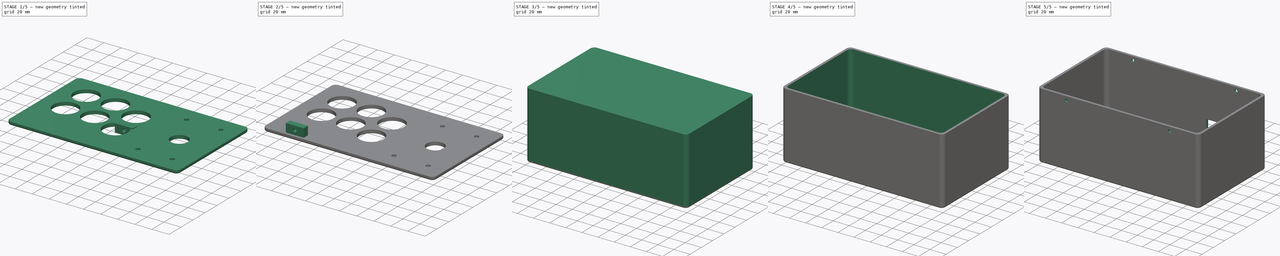
[diagram: build sequence overview — one tinted view per stage of 5, left to right]
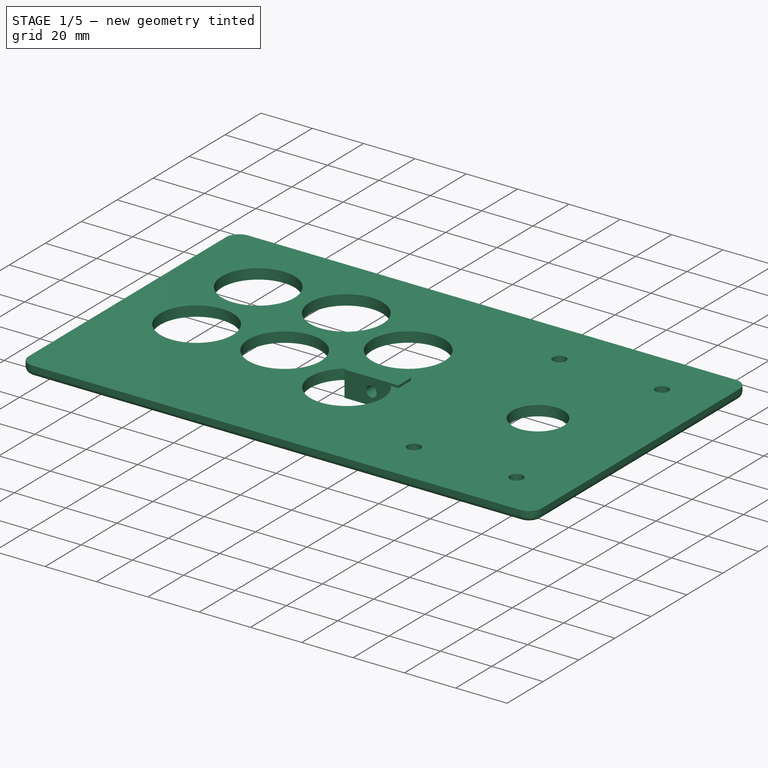
[diagram: stage 1 of 5 — iso view after this stage's code; geometry added in this stage tinted green]
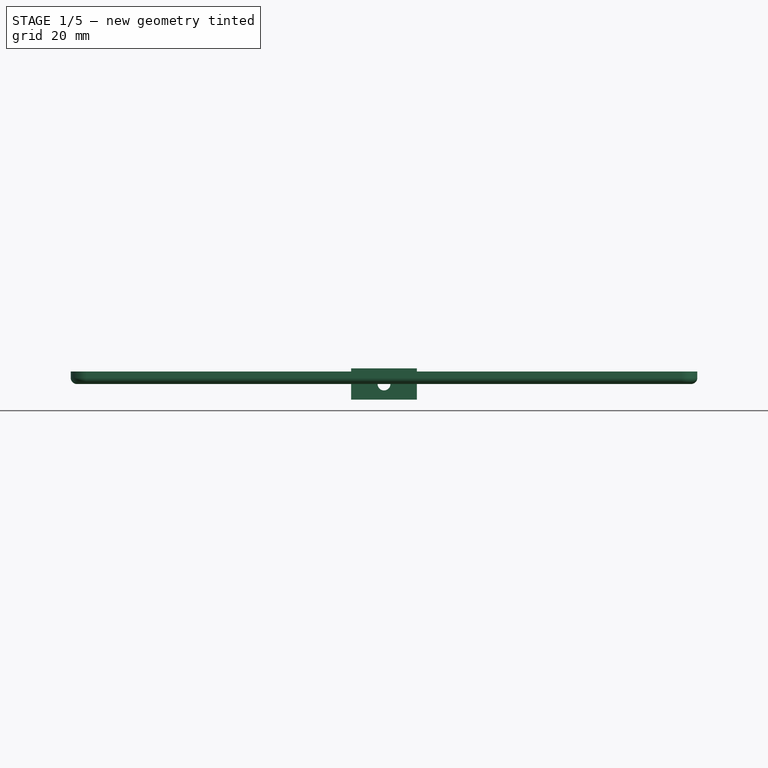
[diagram: stage 1 of 5 — front view after this stage's code; geometry added in this stage tinted green]
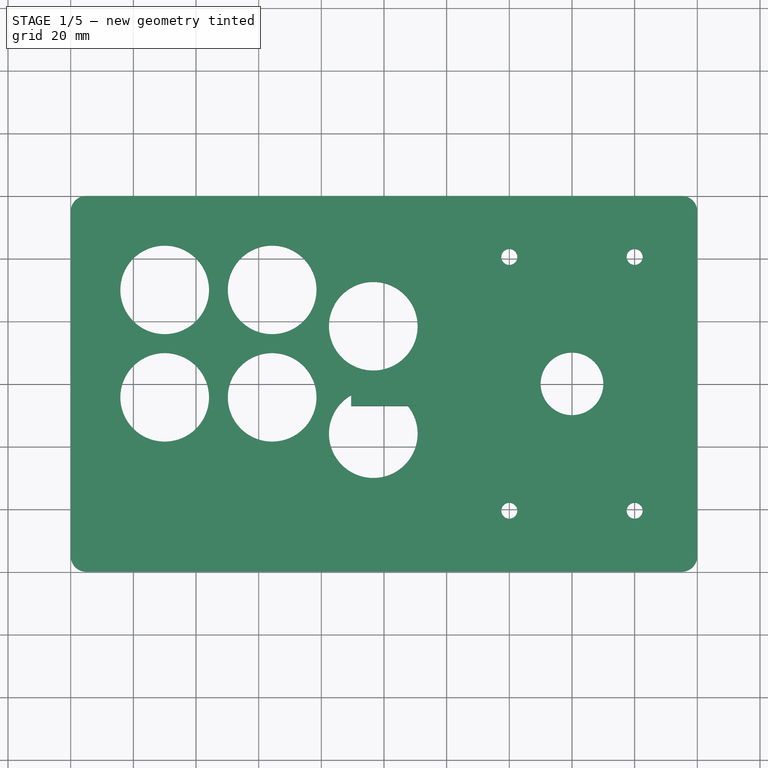
[diagram: stage 1 of 5 — top view after this stage's code; geometry added in this stage tinted green]
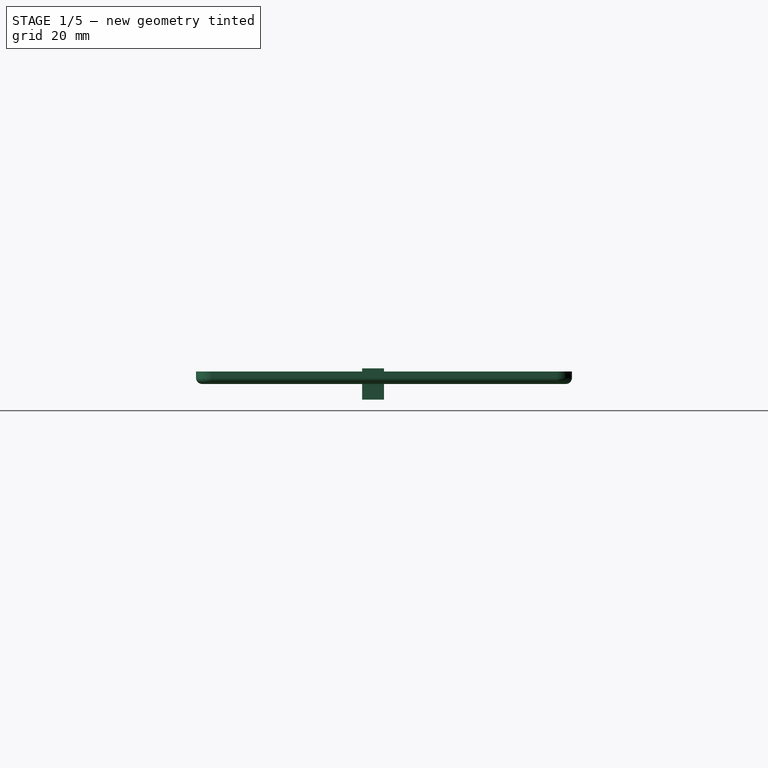
[diagram: stage 1 of 5 — right view after this stage's code; geometry added in this stage tinted green]
FCSTD DOCUMENT  (FreeCAD 0.20R29410 (Git))
Label: arcade-controller
License: All rights reserved
LicenseURL: http://en.wikipedia.org/wiki/All_rights_reserved
objects: Sketcher::SketchObject×9, PartDesign::Body×6, PartDesign::Pocket×5, PartDesign::Pad×4, PartDesign::FeatureBase×3, PartDesign::Fillet×3, Spreadsheet::Sheet×1, Part::MultiFuse×1
note: 43 computed .brp shape members not serialized (recipe doc carries the construction recipe); baked Part::Feature solids carry a one-line shape summary decoded from their .brp

FEATURE [Sketcher::SketchObject] Sketch
  FullyConstrained = true
  MapMode = 5
  Support = -> [XY_Plane]
  expr: Constraints[20] = <<Globals>>.button_distance
  expr: Constraints[24] = <<Globals>>.button_distance
  expr: Constraints[33] = <<Globals>>.button_distance
  expr: Constraints[39] = <<Globals>>.button_distance
  expr: Constraints[46] = <<Globals>>.joy_holes_x_distance
  expr: Constraints[48] = <<Globals>>.joy_screw_d + <<Globals>>.delta
  expr: Constraints[4] = <<Globals>>.button_diameter
  expr: Constraints[58] = <<Globals>>.joy_holes_y_distance
  expr: Constraints[67] = <<Globals>>.joy_diameter
  expr: Constraints[77] = <<Globals>>.cover_fillet_radious
  expr: Constraints[78] = <<Globals>>.cover_fillet_radious
  expr: Constraints[79] = <<Globals>>.width
  expr: Constraints[80] = <<Globals>>.depth
  expr: Constraints[81] = <<Globals>>.button_distance_to_edge
  sketch-geometry (30):
    g0: LineSegment StartX=-95 StartY=60 StartZ=0 EndX=95 EndY=60 EndZ=0
    g1: LineSegment StartX=100 StartY=55 StartZ=0 EndX=100 EndY=-55 EndZ=0
    g2: LineSegment StartX=95 StartY=-60 StartZ=0 EndX=-95 EndY=-60 EndZ=0
    g3: LineSegment StartX=-100 StartY=-55 StartZ=0 EndX=-100 EndY=55 EndZ=0
    g4: Circle CenterX=-70 CenterY=30 CenterZ=0 NormalX=0 NormalY=0 NormalZ=1 AngleXU=0 Radius=14.15
    g5: LineSegment StartX=-100 StartY=30 StartZ=0 EndX=100 EndY=30 EndZ=0
    g6: LineSegment StartX=-100 StartY=-4.3 StartZ=0 EndX=100 EndY=-4.3 EndZ=0
    g7: LineSegment StartX=-70 StartY=60 StartZ=0 EndX=-70 EndY=-60 EndZ=0
    g8: LineSegment StartX=-35.7 StartY=60 StartZ=0 EndX=-35.7 EndY=-60 EndZ=0
    g9: Circle CenterX=-70 CenterY=-4.3 CenterZ=0 NormalX=0 NormalY=0 NormalZ=1 AngleXU=0 Radius=14.15
    g10: Circle CenterX=-35.7 CenterY=30 CenterZ=0 NormalX=0 NormalY=0 NormalZ=1 AngleXU=0 Radius=14.15
    g11: Circle CenterX=-35.7 CenterY=-4.3 CenterZ=0 NormalX=0 NormalY=0 NormalZ=1 AngleXU=0 Radius=14.15
    g12: LineSegment StartX=-100 StartY=53.1241 StartZ=0 EndX=100 EndY=-18.8015 EndZ=0
    g13: Circle CenterX=-3.42374 CenterY=18.3926 CenterZ=0 NormalX=0 NormalY=0 NormalZ=1 AngleXU=0 Radius=14.15
    g14: LineSegment StartX=-100 StartY=18.8241 StartZ=0 EndX=119.182 EndY=-60 EndZ=0
    g15: Circle CenterX=-3.42374 CenterY=-15.9074 CenterZ=0 NormalX=0 NormalY=0 NormalZ=1 AngleXU=0 Radius=14.15
    g16: LineSegment StartX=80 StartY=60 StartZ=0 EndX=80 EndY=-60 EndZ=0
    g17: LineSegment StartX=40 StartY=60 StartZ=0 EndX=40 EndY=-60 EndZ=0
    g18: Circle CenterX=40 CenterY=40.5 CenterZ=0 NormalX=0 NormalY=0 NormalZ=1 AngleXU=0 Radius=2.55
    g19: Circle CenterX=40 CenterY=-40.5 CenterZ=0 NormalX=0 NormalY=0 NormalZ=1 AngleXU=0 Radius=2.55
    g20: Circle CenterX=80 CenterY=40.5 CenterZ=0 NormalX=0 NormalY=0 NormalZ=1 AngleXU=0 Radius=2.55
    g21: Circle CenterX=80 CenterY=-40.5 CenterZ=0 NormalX=0 NormalY=0 NormalZ=1 AngleXU=0 Radius=2.55
    g22: LineSegment StartX=-100 StartY=40.5 StartZ=0 EndX=100 EndY=40.5 EndZ=0
    g23: LineSegment StartX=-100 StartY=-40.5 StartZ=0 EndX=100 EndY=-40.5 EndZ=0
    g24: LineSegment StartX=60 StartY=60 StartZ=0 EndX=60 EndY=-60 EndZ=0
    g25: Circle CenterX=60 CenterY=4.5e-15 CenterZ=0 NormalX=0 NormalY=0 NormalZ=1 AngleXU=0 Radius=10
    g26: ArcOfCircle CenterX=-95 CenterY=55 CenterZ=0 NormalX=0 NormalY=0 NormalZ=1 AngleXU=0 Radius=5 StartAngle=1.5708 EndAngle=3.14159
    g27: ArcOfCircle CenterX=-95 CenterY=-55 CenterZ=0 NormalX=0 NormalY=0 NormalZ=1 AngleXU=0 Radius=5 StartAngle=3.14159 EndAngle=4.71239
    g28: ArcOfCircle CenterX=95 CenterY=-55 CenterZ=0 NormalX=0 NormalY=0 NormalZ=1 AngleXU=0 Radius=5 StartAngle=4.71239 EndAngle=6.28319
    g29: ArcOfCircle CenterX=95 CenterY=55 CenterZ=0 NormalX=0 NormalY=0 NormalZ=1 AngleXU=0 Radius=5 StartAngle=0 EndAngle=1.5708
  constraints (92):
    c: Horizontal(g0)
    c: Horizontal(g2)
    c: Vertical(g1)
    c: Vertical(g3)
    c: Diameter(g4) = 28.3
    c: PointOnObject(g5,g3)
    c: PointOnObject(g5,g1)
    c: Horizontal(g5)
    c: PointOnObject(g6,g3)
    c: PointOnObject(g6,g1)
    c: Horizontal(g6)
    c: DistanceY(g5) = 30
    c: PointOnObject(g4,g5)
    c: PointOnObject(g7,g0)
    c: PointOnObject(g7,g2)
    c: Vertical(g7)
    c: PointOnObject(g8,g0)
    c: PointOnObject(g8,g2)
    c: Vertical(g8)
    c: PointOnObject(g4,g7)
    c: DistanceY(g6,g5) = 34.3
    c: Equal(g4,g9) = 28.2
    c: PointOnObject(g9,g6)
    c: PointOnObject(g9,g7)
    c: DistanceX(g7,g8) = 34.3
    c: Equal(g4,g10) = 28.2
    c: PointOnObject(g10,g8)
    c: PointOnObject(g10,g5)
    c: PointOnObject(g11,g8)
    c: PointOnObject(g11,g6)
    c: PointOnObject(g12,g1)
    c: PointOnObject(g10,g12)
    c: PointOnObject(g13,g12)
    c: Distance(g13,g10) = 34.3
    c: PointOnObject(g14,g3)
    c: Parallel(g14,g12)
    c: PointOnObject(g11,g14)
    c: PointOnObject(g14,g2)
    c: PointOnObject(g15,g14)
    c: Distance(g15,g11) = 34.3
    c: PointOnObject(g16,g0)
    c: PointOnObject(g16,g2)
    c: Vertical(g16)
    c: PointOnObject(g17,g0)
    c: PointOnObject(g17,g2)
    c: Vertical(g17)
    c: DistanceX(g17,g16) = 40
    c: PointOnObject(g18,g17)
    c: Diameter(g18) = 5.1
    c: Equal(g18,g19) = 5.1
    c: Equal(g18,g20) = 5.1
    c: PointOnObject(g20,g16)
    c: PointOnObject(g21,g16)
    c: PointOnObject(g22,g3)
    c: PointOnObject(g22,g1)
    c: Horizontal(g22)
    c: PointOnObject(g23,g3)
    c: Horizontal(g23)
    c: DistanceY(g23,g22) = 81
    c: Symmetric(g22,g23,g-1)  'joy_y'
    c: PointOnObject(g18,g22)
    c: Tangent(g20,g22) = -1.5708
    c: Tangent(g19,g23) = -1.5708
    c: PointOnObject(g21,g23)
    c: PointOnObject(g24,g2)
    c: Vertical(g24)
    c: Symmetric(g16,g17,g24)
    c: Diameter(g25) = 20
    c: PointOnObject(g12,g3)
    c: Tangent(g0,g26) = 1.5708
    c: Tangent(g3,g26) = 1.5708
    c: Tangent(g3,g27) = 1.5708
    c: Tangent(g2,g27) = 1.5708
    c: Tangent(g2,g28) = 1.5708
    c: Tangent(g1,g28) = 1.5708
    c: Tangent(g0,g29) = 1.5708
    c: Tangent(g1,g29) = 1.5708
    c: Radius(g26) = 5
    c: Radius(g29) = 5
    c: DistanceX(g3,g1) = 200
    c: DistanceY(g2,g0) = 120
    c: DistanceX(g3,g7) = 30
    c: Symmetric(g0,g2,g-1)
    c: Symmetric(g3,g1,g-2)
    c: DistanceX(g16,g1) = 20
    c: Angle(g12,g0) = 0.345226
    c: Equal(g13,g10)
    c: Equal(g15,g10)
    c: Equal(g11,g9)
    c: Equal(g21,g18)
    c: PointOnObject(g19,g17)
    c: Symmetric(g20,g19,g25)
FEATURE [Spreadsheet::Sheet] Spreadsheet  label="Globals"
  cells = A1=width; B1(width)==200mm; A2=depth; B2(depth)==120mm; A3=button_diameter; B3(button_diameter)==28.3mm; A4=button_distance; B4(button_distance)==B3 + 6mm; C4=Distance between centers of two buttons; A5=joy screw d; B5(joy_screw_d)==5mm; A6=joy_holes_y_distance; B6(joy_holes_y_distance)==89mm - B7; A7=joy hole depth; B7==8mm; A8=joy holes x distance; B8(joy_holes_x_distance)==45mm - B5; A9=delta; B9(delta)==0.1mm; A10=joy_diameter; B10(joy_diameter)==20mm; A11=plate_thickness; B11(plate_thickness)==4mm; A12=cover_fillet_radious; B12(cover_fillet_radious)==5mm; A13=button_distance_to_edge; B13(button_distance_to_edge)==30mm; A14=hinge_width; B14(hinge_width)==21mm; A15=hinge_depth; B15(hinge_depth)==7mm; A16=hinge_height; B16(hinge_height)==10mm; A17=hinge_y_offset; B17(hinge_y_offset)==depth / 2 - (10mm - B15 / 2); A18=hine_x_offset; B18(hine_x_offset)==B1 / 2 - (46mm - B14 / 2); A19=hinge_screw_d; B19(hinge_screw_d)==4mm; A20=hinge_bolt_d; B20(hinge_bolt_d)==8mm; A21=box_height; B21(box_height)==80mm; A22=case_thickness; B22(case_thickness)==3mm; A23=controller_width; B23(controller_width)==36mm; A24=controller_depth; B24(controller_depth)==86mm; A25=controller_depth_overflow; B25(controller_depth_overflow)==8mm; A26=controller_screw_d; B26(controller_screw_d)==3mm; A27=controller_screw_from_edge; B27(controller_screw_from_edge)==3mm; A28=controller_left_from_inner; B28(controller_left_from_inner)==5mm; A29=controller_usb_left_from_outer; B29(controller_usb_left_from_outer)==B22 + (B23 - B31) / 2 + B28 - B27; A30=controller_usb_width; B30(controller_usb_width)==12mm; A31=controller_usb_hole_width; B31(controller_usb_hole_width)==20mm; A32=joy_inbox_height; B32(joy_inbox_height)==35mm
FEATURE [PartDesign::Pad] Pad  label="raw cover"
  Direction = (0,0,1)
  Length = 4
  Length2 = 10
  Profile = -> Sketch
  ReferenceAxis = -> Sketch [N_Axis]
  Type = 0
  expr: Length = <<Globals>>.plate_thickness
FEATURE [Sketcher::SketchObject] Sketch001
  FullyConstrained = true
  MapMode = 5
  Placement = pos=(0,0,0) rot=(1,0,0;1.5708rad)
  Support = -> [XZ_Plane001]
  expr: Constraints[14] = <<Globals>>.hinge_width
  expr: Constraints[15] = <<Globals>>.hinge_height
  expr: Constraints[16] = <<Globals>>.hinge_screw_d + <<Globals>>.delta
  sketch-geometry (7):
    g0: LineSegment StartX=-10.5 StartY=5 StartZ=0 EndX=10.5 EndY=5 EndZ=0
    g1: LineSegment StartX=10.5 StartY=5 StartZ=0 EndX=10.5 EndY=-5 EndZ=0
    g2: LineSegment StartX=10.5 StartY=-5 StartZ=0 EndX=-10.5 EndY=-5 EndZ=0
    g3: LineSegment StartX=-10.5 StartY=-5 StartZ=0 EndX=-10.5 EndY=5 EndZ=0
    g4: LineSegment StartX=-10.5 StartY=5 StartZ=0 EndX=0 EndY=0 EndZ=0
    g5: LineSegment StartX=0 StartY=0 StartZ=0 EndX=10.5 EndY=-5 EndZ=0
    g6: Circle CenterX=0 CenterY=0 CenterZ=0 NormalX=0 NormalY=0 NormalZ=1 AngleXU=0 Radius=2.05
  constraints (18):
    c: Coincident(g0,g1)
    c: Coincident(g1,g2)
    c: Coincident(g2,g3)
    c: Coincident(g3,g0)
    c: Horizontal(g0)
    c: Horizontal(g2)
    c: Vertical(g1)
    c: Vertical(g3)
    c: Coincident(g4,g0)
    c: Coincident(g4,g-1)
    c: Coincident(g5,g4)
    c: Coincident(g5,g1)
    c: Parallel(g5,g4)
    c: Equal(g5,g4)
    c: DistanceX(g0,g0) = 21
    c: DistanceY(g1,g0) = 10
    c: Diameter(g6) = 4.1
    c: Coincident(g6,g4)
FEATURE [PartDesign::Pad] Pad001
  Direction = (0,-1,-2e-16)
  Length = 7
  Length2 = 10
  Placement = pos=(0,0,0) rot=(1,0,0;1.5708rad)
  Profile = -> Sketch001
  ReferenceAxis = -> Sketch001 [N_Axis]
  Type = 0
  expr: Length = <<Globals>>.hinge_depth
FEATURE [PartDesign::Body] Body004  label="Hinge BottomRight"
  BaseFeature = -> Body003
  Group = -> [Clone002]
  Origin = -> Origin004
  Placement = pos=(129,0,0) rot=(0,0,1;0rad)
  Tip = -> Clone002
FEATURE [PartDesign::Fillet] Fillet
  Base = -> Pad [Edge15]
  BaseFeature = -> Pad
  Radius = 2
  SupportTransform = false
  UseAllEdges = false
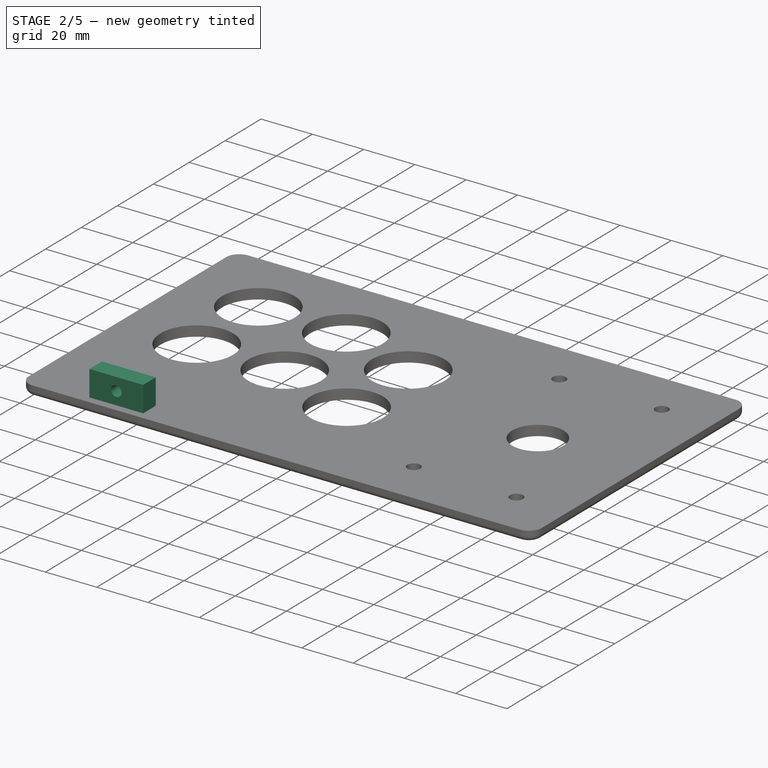
[diagram: stage 2 of 5 — iso view after this stage's code; geometry added in this stage tinted green]
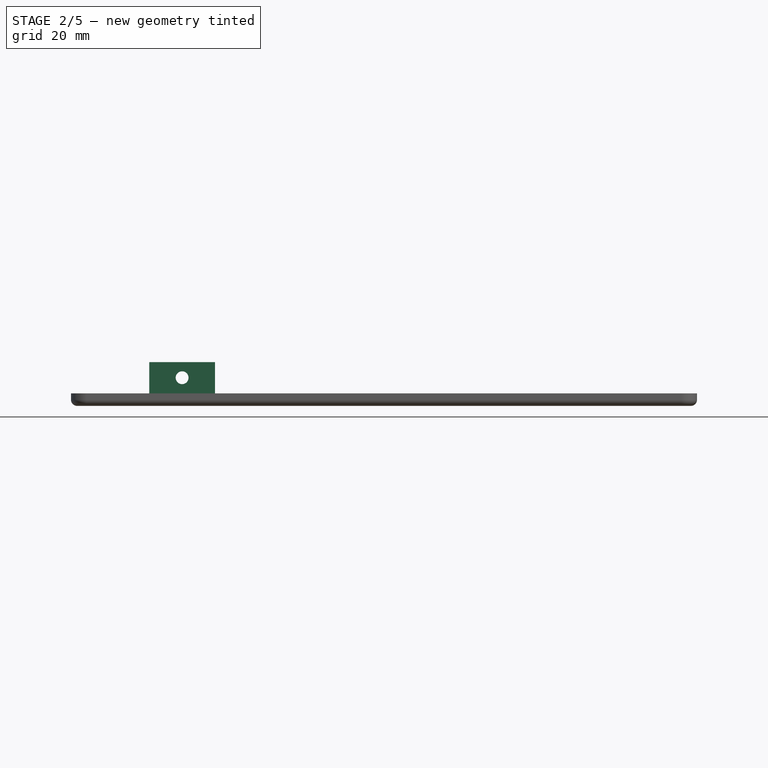
[diagram: stage 2 of 5 — front view after this stage's code; geometry added in this stage tinted green]
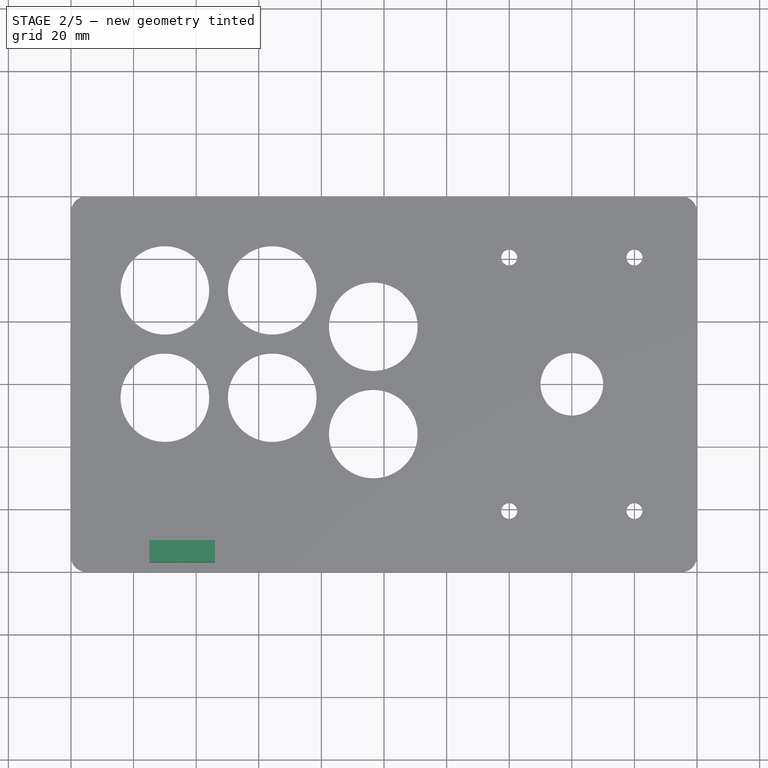
[diagram: stage 2 of 5 — top view after this stage's code; geometry added in this stage tinted green]
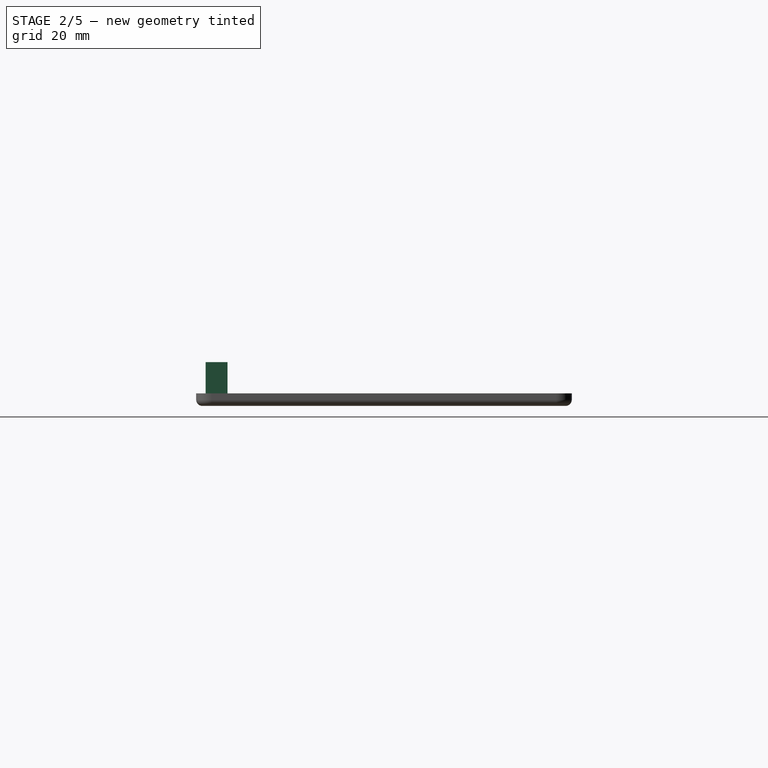
[diagram: stage 2 of 5 — right view after this stage's code; geometry added in this stage tinted green]
FEATURE [Sketcher::SketchObject] Sketch002
  FullyConstrained = false
  MapMode = 5
  Placement = pos=(0,-7,-1.6e-15) rot=(1,0,0;1.5708rad)
  Support = -> [Pad001]
  expr: Constraints[18] = <<Globals>>.hinge_bolt_d + <<Globals>>.delta
  sketch-geometry (7):
    g0: LineSegment StartX=2.23902 StartY=-3.3748 StartZ=0 EndX=4.04217 EndY=0.251643 EndZ=0
    g1: LineSegment StartX=4.04217 StartY=0.251643 StartZ=0 EndX=1.80316 EndY=3.62645 EndZ=0
    g2: LineSegment StartX=1.80316 StartY=3.62645 StartZ=0 EndX=-2.23902 EndY=3.3748 EndZ=0
    g3: LineSegment StartX=-2.23902 StartY=3.3748 StartZ=0 EndX=-4.04217 EndY=-0.251643 EndZ=0
    g4: LineSegment StartX=-4.04217 StartY=-0.251643 StartZ=0 EndX=-1.80316 EndY=-3.62645 EndZ=0
    g5: LineSegment StartX=-1.80316 StartY=-3.62645 StartZ=0 EndX=2.23902 EndY=-3.3748 EndZ=0
    g6: Circle CenterX=0 CenterY=0 CenterZ=0 NormalX=0 NormalY=0 NormalZ=1 AngleXU=0 Radius=4.05
  constraints (15):
    c: Coincident(g0,g1)
    c: Coincident(g1,g2)
    c: Coincident(g2,g3)
    c: Coincident(g3,g4)
    c: Coincident(g4,g5)
    c: Coincident(g5,g0)
    c: Equal(g0, g1-g5) x5
    c: PointOnObject(g0,g6)
    c: PointOnObject(g1,g6)
    c: PointOnObject(g2,g6)
    c: PointOnObject(g3,g6)
    c: PointOnObject(g4,g6)
    c: PointOnObject(g5,g6)
    c: Coincident(g6,g-1)
    c: Diameter(g6) = 8.1
FEATURE [PartDesign::Pocket] Pocket
  BaseFeature = -> Pad001
  Direction = (0,1,2e-16)
  Length = 2.1
  Length2 = 5
  Placement = pos=(0,0,0) rot=(1,0,0;1.5708rad)
  Profile = -> Sketch002
  ReferenceAxis = -> Sketch002 [N_Axis]
  Type = 0
  expr: Length = 2mm + <<Globals>>.delta
FEATURE [PartDesign::Body] Body002  label="Hinge TopRight"
  BaseFeature = -> Body001
  Group = -> [Clone]
  Origin = -> Origin002
  Placement = pos=(129,0,0) rot=(0,0,1;0rad)
  Tip = -> Clone
FEATURE [PartDesign::FeatureBase] Clone001
  BaseFeature = -> Body001
  Placement = pos=(-64.5,57,9) rot=(0,0,1;3.14159rad)
FEATURE [PartDesign::Body] Body003  label="Hinge BottomLeft"
  BaseFeature = -> Body001
  Group = -> [Clone001]
  Origin = -> Origin003
  Placement = pos=(0,-114,0) rot=(0,0,1;0rad)
  Tip = -> Clone001
FEATURE [PartDesign::FeatureBase] Clone002
  BaseFeature = -> Body003
  Placement = pos=(0,-114,0) rot=(0,0,1;0rad)
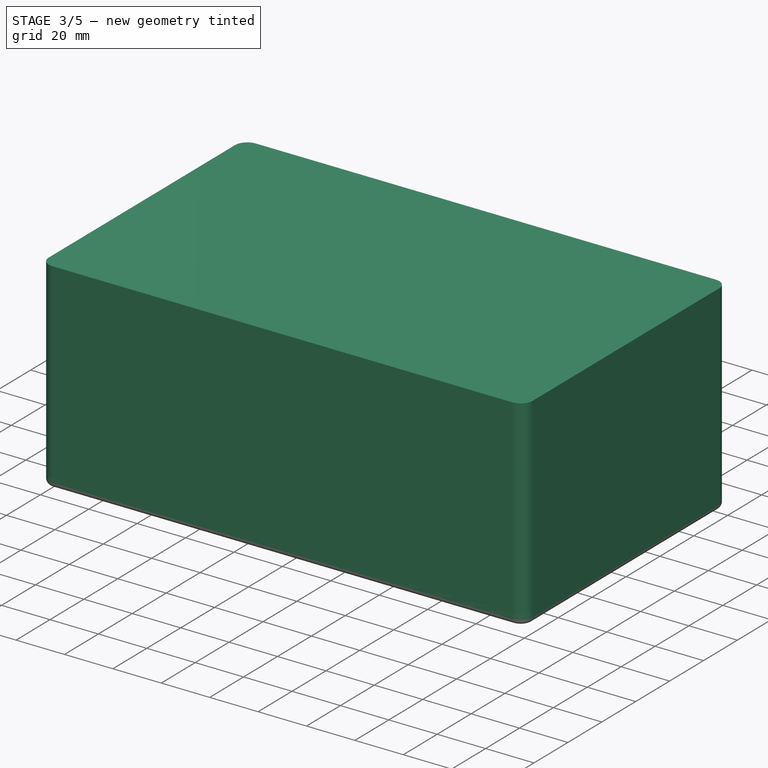
[diagram: stage 3 of 5 — iso view after this stage's code; geometry added in this stage tinted green]
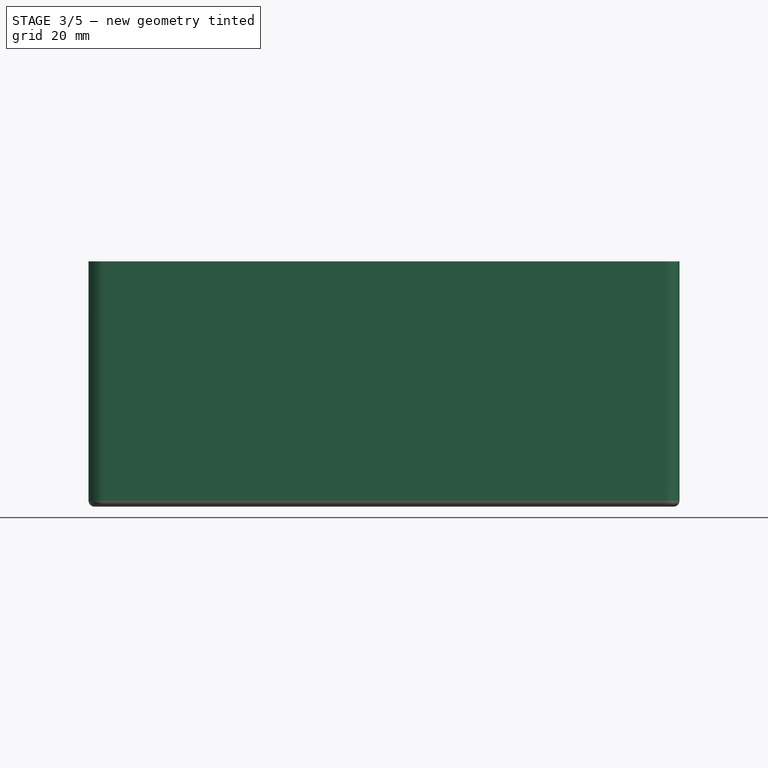
[diagram: stage 3 of 5 — front view after this stage's code; geometry added in this stage tinted green]
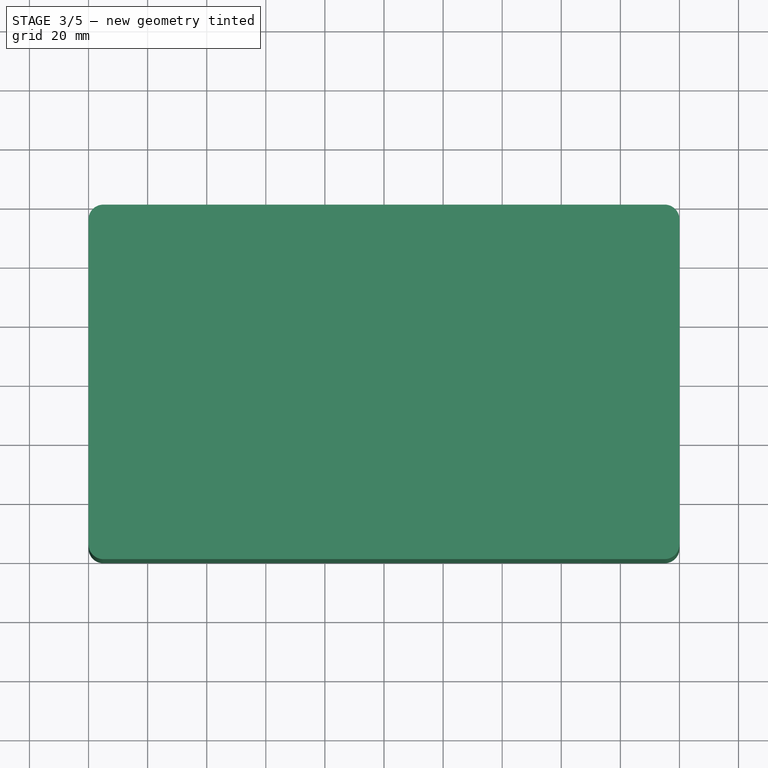
[diagram: stage 3 of 5 — top view after this stage's code; geometry added in this stage tinted green]
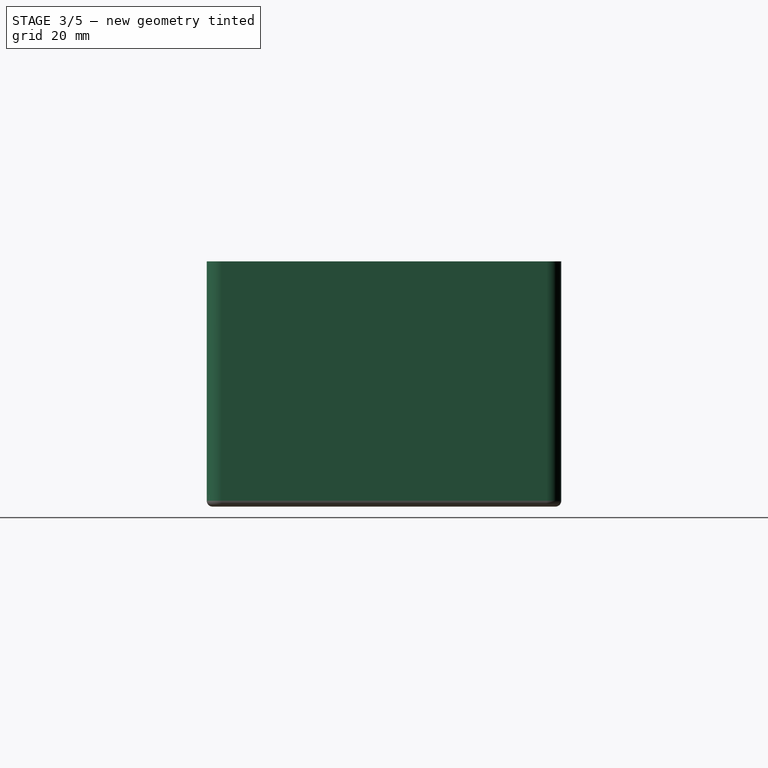
[diagram: stage 3 of 5 — right view after this stage's code; geometry added in this stage tinted green]
FEATURE [PartDesign::Body] Body001  label="Hinge TopLeft"
  Group = -> [Sketch001,Pad001,Sketch002,Pocket]
  Origin = -> Origin001
  Placement = pos=(-64.5,57,9) rot=(0,0,1;0rad)
  Tip = -> Pocket
  expr: .Placement.Base.x = -<<Globals>>.hine_x_offset
  expr: .Placement.Base.y = <<Globals>>.hinge_depth / 2 + <<Globals>>.hinge_y_offset
  expr: .Placement.Base.z = <<Globals>>.plate_thickness + <<Globals>>.hinge_height / 2
FEATURE [PartDesign::FeatureBase] Clone
  BaseFeature = -> Body001
  Placement = pos=(-64.5,57,9) rot=(0,0,1;0rad)
FEATURE [PartDesign::Body] Body  label="Cover"
  Group = -> [Sketch,Pad,Fillet]
  Origin = -> Origin
  Tip = -> Fillet
FEATURE [Sketcher::SketchObject] Sketch003
  FullyConstrained = true
  MapMode = 5
  Support = -> [XY_Plane005]
  expr: Constraints[12] = <<Globals>>.cover_fillet_radious
  expr: Constraints[14] = <<Globals>>.width
  expr: Constraints[15] = <<Globals>>.depth
  sketch-geometry (8):
    g0: LineSegment StartX=-95 StartY=60 StartZ=0 EndX=95 EndY=60 EndZ=0
    g1: LineSegment StartX=100 StartY=55 StartZ=0 EndX=100 EndY=-55 EndZ=0
    g2: LineSegment StartX=95 StartY=-60 StartZ=0 EndX=-95 EndY=-60 EndZ=0
    g3: LineSegment StartX=-100 StartY=-55 StartZ=0 EndX=-100 EndY=55 EndZ=0
    g4: ArcOfCircle CenterX=-95 CenterY=55 CenterZ=0 NormalX=0 NormalY=0 NormalZ=1 AngleXU=0 Radius=5 StartAngle=1.5708 EndAngle=3.14159
    g5: ArcOfCircle CenterX=95 CenterY=55 CenterZ=0 NormalX=0 NormalY=0 NormalZ=1 AngleXU=0 Radius=5 StartAngle=-5.33e-14 EndAngle=1.5708
    g6: ArcOfCircle CenterX=95 CenterY=-55 CenterZ=0 NormalX=0 NormalY=0 NormalZ=1 AngleXU=0 Radius=5 StartAngle=4.71239 EndAngle=6.28319
    g7: ArcOfCircle CenterX=-95 CenterY=-55 CenterZ=0 NormalX=0 NormalY=0 NormalZ=1 AngleXU=0 Radius=5 StartAngle=3.14159 EndAngle=4.71239
  constraints (18):
    c: Horizontal(g0)
    c: Horizontal(g2)
    c: Vertical(g1)
    c: Vertical(g3)
    c: Tangent(g0,g4) = 1.5708
    c: Tangent(g3,g4) = 1.5708
    c: Tangent(g0,g5) = 1.5708
    c: Tangent(g1,g5) = 1.5708
    c: Tangent(g1,g6) = 1.5708
    c: Tangent(g2,g6) = 1.5708
    c: Tangent(g2,g7) = 1.5708
    c: Tangent(g3,g7) = 1.5708
    c: Radius(g4) = 5
    c: Equal(g6,g7)
    c: DistanceX(g3,g1) = 200
    c: DistanceY(g2,g0) = 120
    c: Symmetric(g0,g2,g-1)
    c: Symmetric(g3,g1,g-2)
FEATURE [PartDesign::Pad] Pad002  label="External"
  Direction = (0,0,1)
  Length = 83
  Length2 = 10
  Profile = -> Sketch003
  ReferenceAxis = -> Sketch003 [N_Axis]
  Type = 0
  expr: Length = <<Globals>>.case_thickness + <<Globals>>.box_height
FEATURE [PartDesign::Fillet] Fillet001
  Base = -> Pad002 [Face9]
  BaseFeature = -> Pad002
  Radius = 2
  SupportTransform = false
  UseAllEdges = false
FEATURE [PartDesign::Body] Body005  label="Box"
  Group = -> [Sketch003,Pad002,Fillet001,Sketch004,Pocket001,Sketch005,Pad003,Fillet002,Sketch006,Pocket002,Sketch007,Pocket003,Sketch008,Pocket004]
  Origin = -> Origin005
  Tip = -> Pocket004
FEATURE [Part::MultiFuse] Fusion  label="Complete Cover"
  Shapes = -> [Body001,Body002,Body003,Body004,Body]
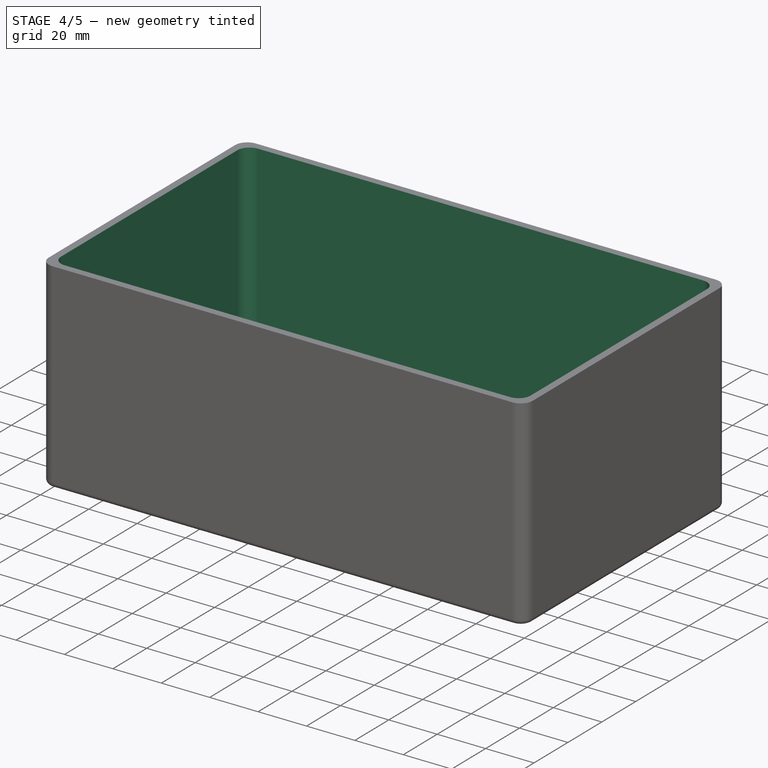
[diagram: stage 4 of 5 — iso view after this stage's code; geometry added in this stage tinted green]
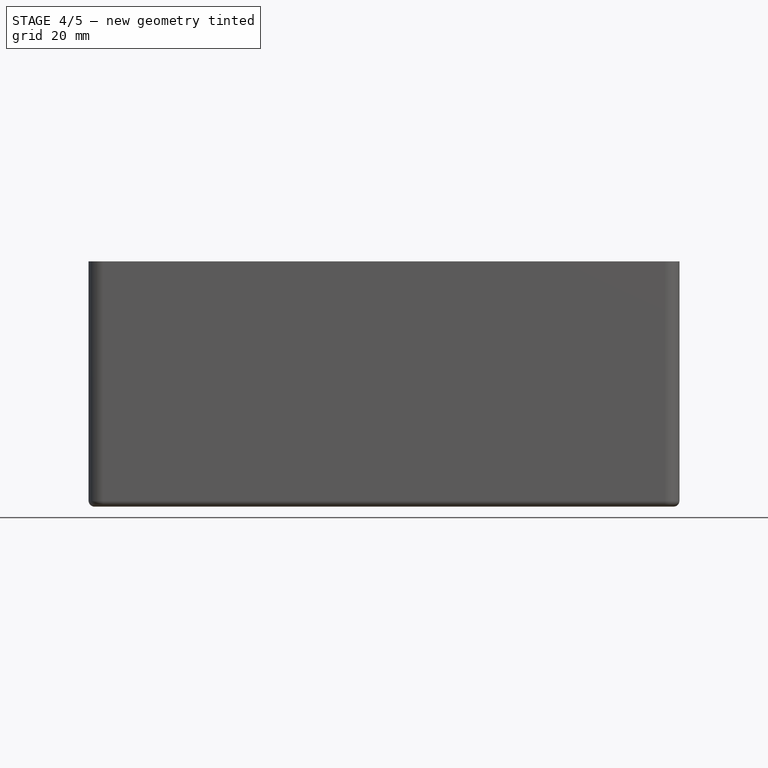
[diagram: stage 4 of 5 — front view after this stage's code; geometry added in this stage tinted green]
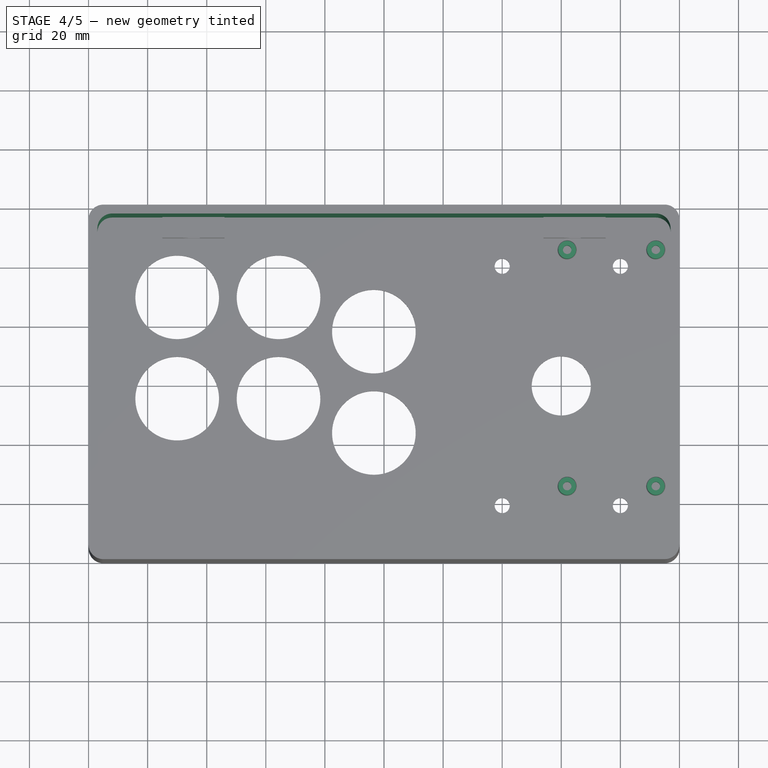
[diagram: stage 4 of 5 — top view after this stage's code; geometry added in this stage tinted green]
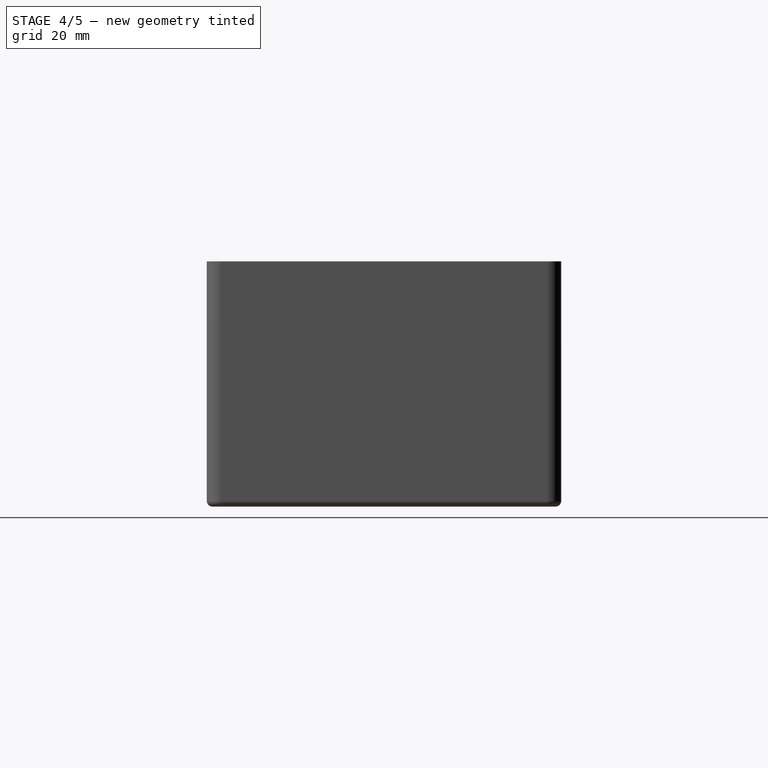
[diagram: stage 4 of 5 — right view after this stage's code; geometry added in this stage tinted green]
FEATURE [Sketcher::SketchObject] Sketch004
  ExternalGeometry = -> [Fillet001]
  FullyConstrained = true
  MapMode = 5
  Placement = pos=(0,0,83) rot=(0,0,1;0rad)
  Support = -> [Fillet001]
  expr: Constraints[16] = <<Globals>>.case_thickness
  expr: Constraints[17] = <<Globals>>.case_thickness
  expr: Constraints[18] = <<Globals>>.case_thickness
  expr: Constraints[19] = <<Globals>>.case_thickness
  sketch-geometry (8):
    g0: LineSegment StartX=-92 StartY=57 StartZ=0 EndX=92 EndY=57 EndZ=0
    g1: LineSegment StartX=97 StartY=52 StartZ=0 EndX=97 EndY=-52 EndZ=0
    g2: LineSegment StartX=92 StartY=-57 StartZ=0 EndX=-92 EndY=-57 EndZ=0
    g3: LineSegment StartX=-97 StartY=-52 StartZ=0 EndX=-97 EndY=52 EndZ=0
    g4: ArcOfCircle CenterX=-92 CenterY=52 CenterZ=0 NormalX=0 NormalY=0 NormalZ=1 AngleXU=0 Radius=5 StartAngle=1.5708 EndAngle=3.14159
    g5: ArcOfCircle CenterX=92 CenterY=52 CenterZ=0 NormalX=0 NormalY=0 NormalZ=1 AngleXU=0 Radius=5 StartAngle=0 EndAngle=1.5708
    g6: ArcOfCircle CenterX=92 CenterY=-52 CenterZ=0 NormalX=0 NormalY=0 NormalZ=1 AngleXU=0 Radius=5 StartAngle=4.71239 EndAngle=6.28319
    g7: ArcOfCircle CenterX=-92 CenterY=-52 CenterZ=0 NormalX=0 NormalY=0 NormalZ=1 AngleXU=0 Radius=5 StartAngle=3.14159 EndAngle=4.71239
  constraints (20):
    c: Horizontal(g0)
    c: Horizontal(g2)
    c: Vertical(g1)
    c: Vertical(g3)
    c: Tangent(g0,g4) = 1.5708
    c: Tangent(g3,g4) = 1.5708
    c: Tangent(g0,g5) = 1.5708
    c: Tangent(g1,g5) = 1.5708
    c: Tangent(g1,g6) = 1.5708
    c: Tangent(g2,g6) = 1.5708
    c: Tangent(g2,g7) = 1.5708
    c: Tangent(g3,g7) = 1.5708
    c: Equal(g4,g-7)
    c: Equal(g5,g-8)
    c: Equal(g6,g-9)
    c: Equal(g7,g-10)
    c: DistanceX(g-7,g3) = 3
    c: DistanceX(g1,g-8) = 3
    c: DistanceY(g0,g-8) = 3
    c: DistanceY(g-9,g2) = 3
FEATURE [PartDesign::Pocket] Pocket001  label="Hole"
  BaseFeature = -> Fillet001
  Direction = (0,0,-1)
  Length = 80
  Length2 = 5
  Profile = -> Sketch004
  ReferenceAxis = -> Sketch004 [N_Axis]
  Type = 0
  expr: Length = <<Globals>>.box_height
FEATURE [Sketcher::SketchObject] Sketch005
  ExternalGeometry = -> [Pocket001]
  FullyConstrained = false
  MapMode = 5
  Placement = pos=(0,0,3) rot=(0,0,1;0rad)
  Support = -> [Pocket001]
  expr: Constraints[12] = <<Globals>>.controller_screw_from_edge + <<Globals>>.controller_depth_overflow
  expr: Constraints[15] = <<Globals>>.controller_width - <<Globals>>.controller_screw_from_edge * 2
  expr: Constraints[16] = <<Globals>>.controller_depth - <<Globals>>.controller_screw_from_edge * 2
  expr: Constraints[1] = <<Globals>>.controller_screw_d + 3mm
  expr: Constraints[22] = <<Globals>>.controller_left_from_inner
  expr: Constraints[2] = <<Globals>>.controller_screw_d - 0.1mm
  sketch-geometry (12):
    g0: Circle CenterX=62 CenterY=46 CenterZ=0 NormalX=0 NormalY=0 NormalZ=1 AngleXU=0 Radius=3
    g1: Circle CenterX=62 CenterY=46 CenterZ=0 NormalX=0 NormalY=0 NormalZ=1 AngleXU=0 Radius=1.45
    g2: LineSegment StartX=62 StartY=57 StartZ=0 EndX=62 EndY=-56.2165 EndZ=0
    g3: LineSegment StartX=92 StartY=57 StartZ=0 EndX=92 EndY=-66.0938 EndZ=0
    g4: LineSegment StartX=-97 StartY=46 StartZ=0 EndX=92 EndY=46 EndZ=0
    g5: LineSegment StartX=-97 StartY=-34 StartZ=0 EndX=92 EndY=-34 EndZ=0
    g6: Circle CenterX=92 CenterY=46 CenterZ=0 NormalX=0 NormalY=0 NormalZ=1 AngleXU=0 Radius=3
    g7: Circle CenterX=92 CenterY=46 CenterZ=0 NormalX=0 NormalY=0 NormalZ=1 AngleXU=0 Radius=1.45
    g8: Circle CenterX=62 CenterY=-34 CenterZ=0 NormalX=0 NormalY=0 NormalZ=1 AngleXU=0 Radius=1.45
    g9: Circle CenterX=62 CenterY=-34 CenterZ=0 NormalX=0 NormalY=0 NormalZ=1 AngleXU=0 Radius=3
    g10: Circle CenterX=92 CenterY=-34 CenterZ=0 NormalX=0 NormalY=0 NormalZ=1 AngleXU=0 Radius=3
    g11: Circle CenterX=92 CenterY=-34 CenterZ=0 NormalX=0 NormalY=0 NormalZ=1 AngleXU=0 Radius=1.45
  constraints (34):
    c: Coincident(g1,g0)
    c: Diameter(g0) = 6
    c: Diameter(g1) = 2.9
    c: Vertical(g2)
    c: PointOnObject(g3,g-3)
    c: Vertical(g3)
    c: PointOnObject(g4,g-4)
    c: PointOnObject(g4,g3)
    c: Horizontal(g4)
    c: PointOnObject(g5,g-4)
    c: PointOnObject(g5,g3)
    c: Horizontal(g5)
    c: DistanceY(g4,g2) = 11
    c: PointOnObject(g0,g2)
    c: PointOnObject(g0,g4)
    c: DistanceX(g2,g3) = 30
    c: DistanceY(g5,g4) = 80
    c: Coincident(g7,g6)
    c: Equal(g0,g6) = 5
    c: Equal(g1,g7) = 3
    c: PointOnObject(g7,g3)
    c: PointOnObject(g6,g4)
    c: DistanceX(g3,g-5) = 5
    c: Coincident(g8,g9)
    c: Equal(g0,g9) = 5
    c: Equal(g1,g8) = 3
    c: PointOnObject(g9,g5)
    c: PointOnObject(g8,g2)
    c: Coincident(g11,g10)
    c: Equal(g0,g10) = 5
    c: Equal(g1,g11) = 3
    c: PointOnObject(g11,g3)
    c: PointOnObject(g10,g5)
    c: PointOnObject(g2,g-3)
FEATURE [PartDesign::Pad] Pad003  label="Controller Support"
  BaseFeature = -> Pocket001
  Direction = (0,0,1)
  Length = 8
  Length2 = 10
  Profile = -> Sketch005
  ReferenceAxis = -> Sketch005 [N_Axis]
  Type = 0
FEATURE [PartDesign::Fillet] Fillet002
  Base = -> Pad003 [Edge65,Edge66,Edge68,Edge67]
  BaseFeature = -> Pad003
  Radius = 2
  SupportTransform = false
  UseAllEdges = false
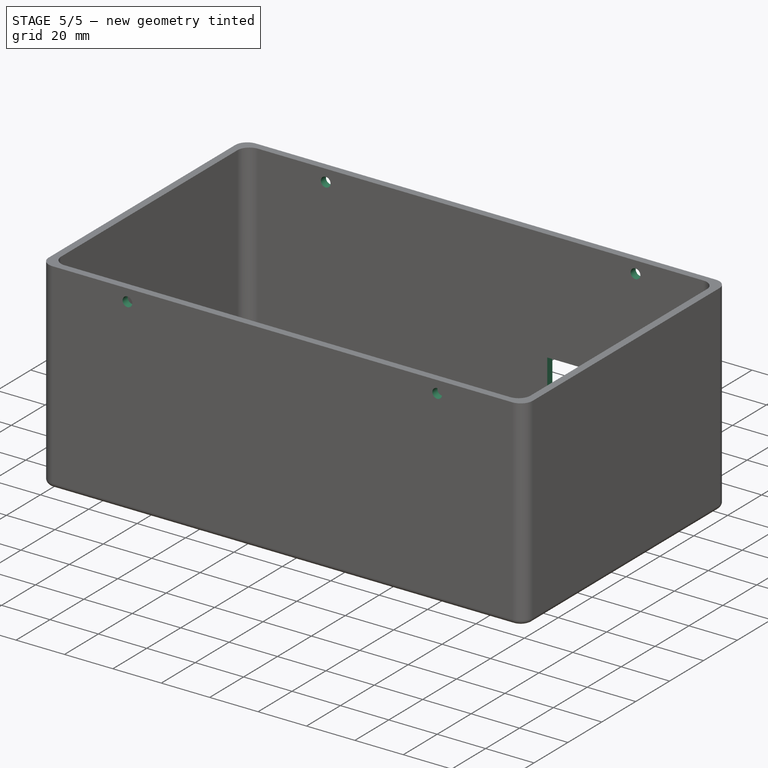
[diagram: stage 5 of 5 — iso view after this stage's code; geometry added in this stage tinted green]
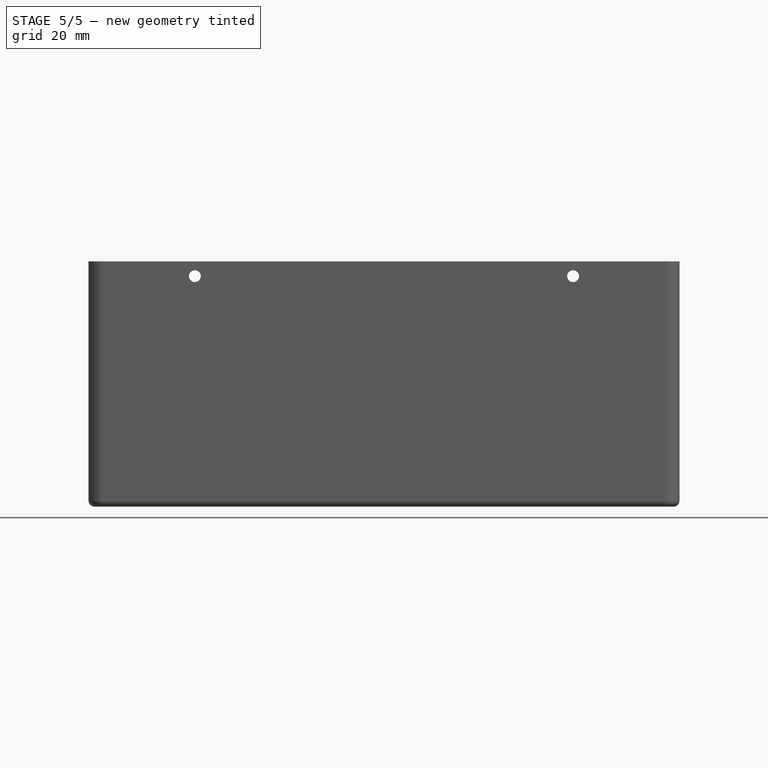
[diagram: stage 5 of 5 — front view after this stage's code; geometry added in this stage tinted green]
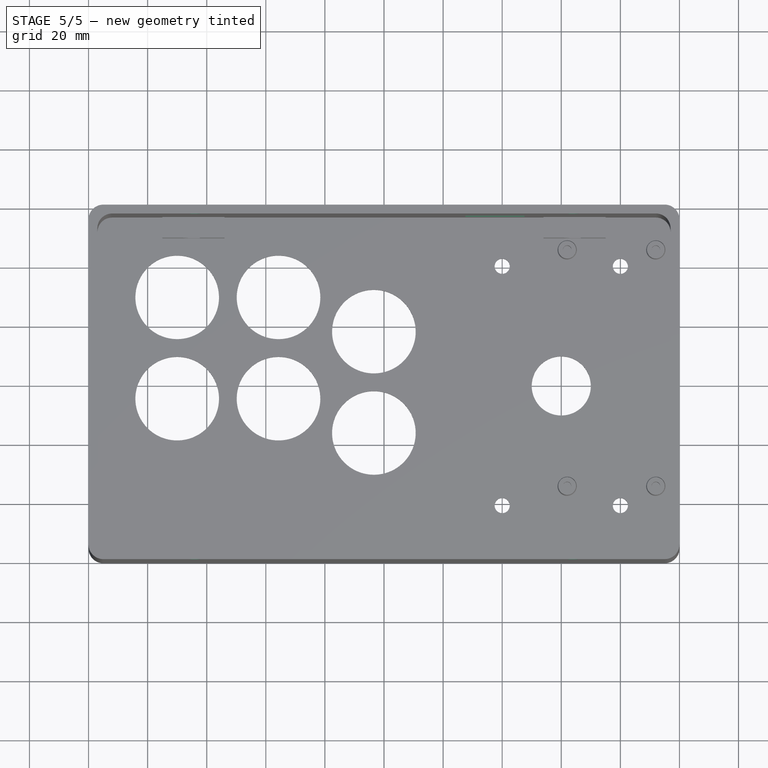
[diagram: stage 5 of 5 — top view after this stage's code; geometry added in this stage tinted green]
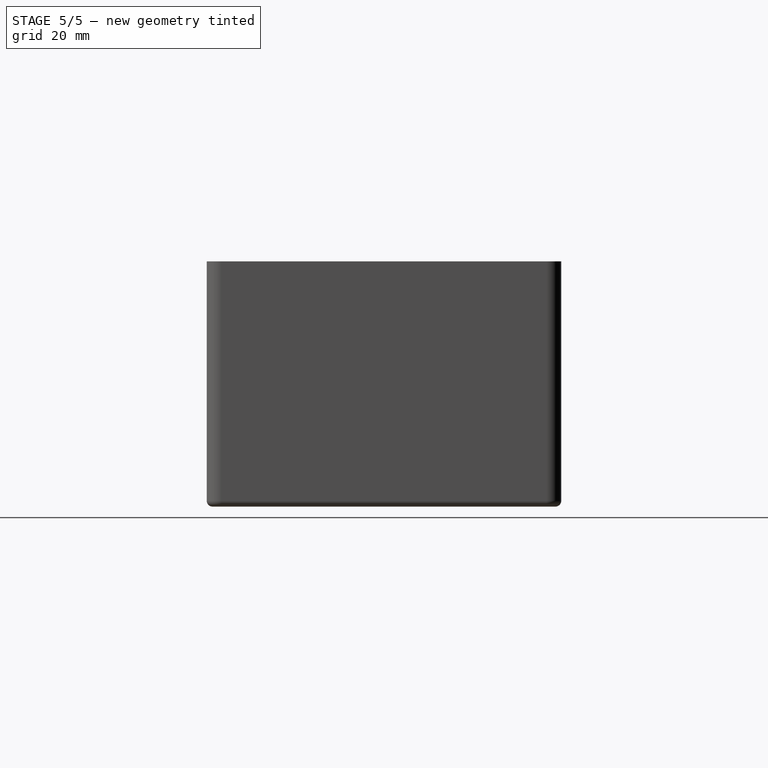
[diagram: stage 5 of 5 — right view after this stage's code; geometry added in this stage tinted green]
FEATURE [Sketcher::SketchObject] Sketch006
  ExternalGeometry = -> [Fillet002]
  FullyConstrained = true
  MapMode = 5
  Placement = pos=(0,60,0) rot=(0,0.707107,0.707107;3.14159rad)
  Support = -> [Fillet002]
  expr: Constraints[11] = <<Globals>>.controller_usb_left_from_outer
  sketch-geometry (4):
    g0: LineSegment StartX=-47.55 StartY=37 StartZ=0 EndX=-27.55 EndY=37 EndZ=0
    g1: LineSegment StartX=-27.55 StartY=37 StartZ=0 EndX=-27.55 EndY=21 EndZ=0
    g2: LineSegment StartX=-27.55 StartY=21 StartZ=0 EndX=-47.55 EndY=21 EndZ=0
    g3: LineSegment StartX=-47.55 StartY=21 StartZ=0 EndX=-47.55 EndY=37 EndZ=0
  constraints (12):
    c: Coincident(g0,g1)
    c: Coincident(g1,g2)
    c: Coincident(g2,g3)
    c: Coincident(g3,g0)
    c: Horizontal(g0)
    c: Horizontal(g2)
    c: Vertical(g1)
    c: Vertical(g3)
    c: DistanceX(g0,g0) = 20
    c: DistanceY(g1,g1) = 16
    c: DistanceY(g-4,g2) = 10
    c: DistanceX(g-4,g2) = 13
FEATURE [PartDesign::Pocket] Pocket002  label="USB"
  BaseFeature = -> Fillet002
  Direction = (0,-1,2e-16)
  Length = 5
  Length2 = 5
  Profile = -> Sketch006
  ReferenceAxis = -> Sketch006 [N_Axis]
  Type = 0
FEATURE [Sketcher::SketchObject] Sketch007
  ExternalGeometry = -> [Pocket002]
  FullyConstrained = true
  MapMode = 5
  Placement = pos=(0,60,0) rot=(0,0.707107,0.707107;3.14159rad)
  Support = -> [Pocket002]
  expr: Constraints[0] = <<Globals>>.joy_inbox_height + <<Globals>>.button_diameter / 2 + 5mm
  expr: Constraints[1] = <<Globals>>.button_diameter / 2 + 10mm
  expr: Constraints[4] = <<Globals>>.button_distance + 5mm
  expr: Constraints[5] = <<Globals>>.button_diameter
  sketch-geometry (2):
    g0: Circle CenterX=-119.15 CenterY=28.85 CenterZ=0 NormalX=0 NormalY=0 NormalZ=1 AngleXU=0 Radius=14.15
    g1: Circle CenterX=-158.45 CenterY=28.85 CenterZ=0 NormalX=0 NormalY=0 NormalZ=1 AngleXU=0 Radius=14.15
  constraints (6):
    c: DistanceY(g0,g-3) = 54.15
    c: DistanceX(g0,g-3) = 24.15
    c: Equal(g0,g1)
    c: Horizontal(g1,g0)
    c: DistanceX(g1,g0) = 39.3
    c: Diameter(g1) = 28.3
FEATURE [PartDesign::Pocket] Pocket003  label="Front buttons"
  BaseFeature = -> Pocket002
  Direction = (0,-1,2e-16)
  Length = 5
  Length2 = 5
  Profile = -> Sketch007
  ReferenceAxis = -> Sketch007 [N_Axis]
  Type = 0
FEATURE [Sketcher::SketchObject] Sketch008
  ExternalGeometry = -> [Pad002]
  FullyConstrained = true
  MapMode = 5
  Placement = pos=(0,60,0) rot=(0,0.707107,0.707107;3.14159rad)
  Support = -> [Pad002]
  expr: Constraints[0] = <<Globals>>.hinge_screw_d
  expr: Constraints[2] = <<Globals>>.hinge_height / 2
  sketch-geometry (2):
    g0: Circle CenterX=-64 CenterY=78 CenterZ=0 NormalX=0 NormalY=0 NormalZ=1 AngleXU=0 Radius=2
    g1: Circle CenterX=64 CenterY=78 CenterZ=0 NormalX=0 NormalY=0 NormalZ=1 AngleXU=0 Radius=2
  constraints (5):
    c: Diameter(g0) = 4
    c: DistanceX(g-3,g0) = 36
    c: DistanceY(g0,g-3) = 5
    c: Equal(g1,g0)
    c: Symmetric(g0,g1,g-2)
FEATURE [PartDesign::Pocket] Pocket004  label="Hinge screws holes"
  BaseFeature = -> Pocket003
  Direction = (0,-1,2e-16)
  Length = 5
  Length2 = 5
  Profile = -> Sketch008
  ReferenceAxis = -> Sketch008 [N_Axis]
  Type = 1
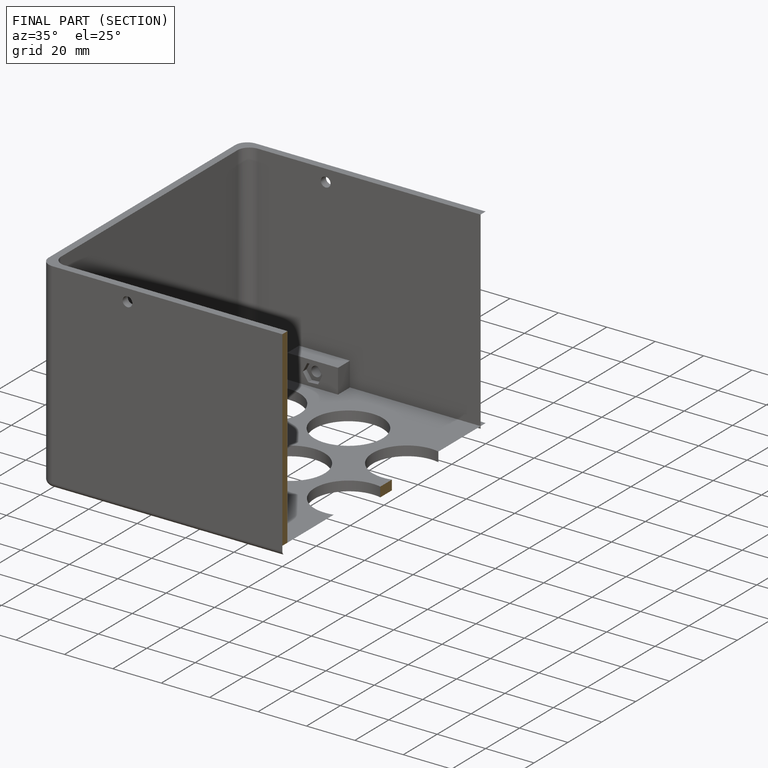
[diagram: finished part — half-section view (interior)]
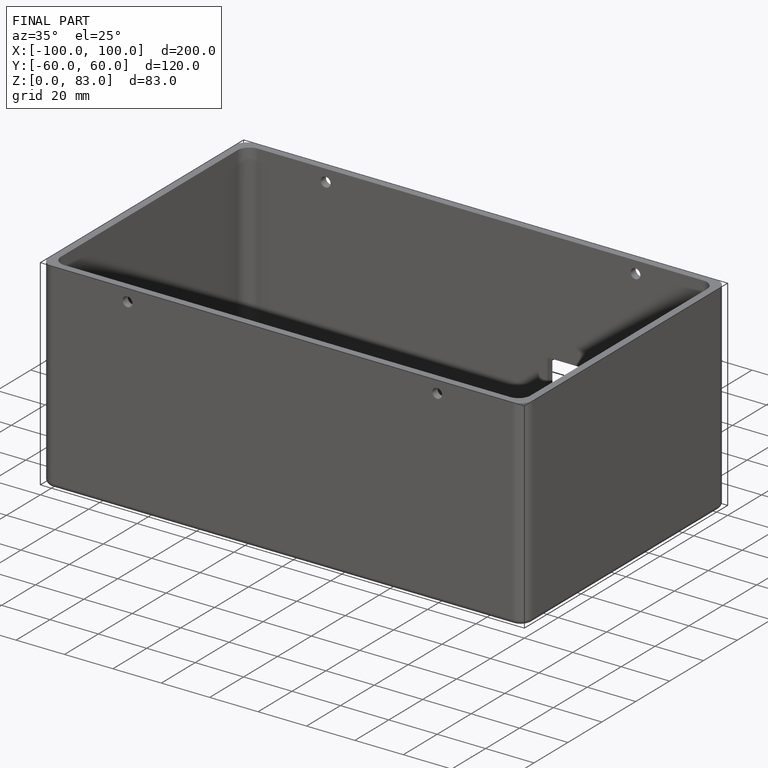
[diagram: finished part — iso view with bounding-box wireframe]
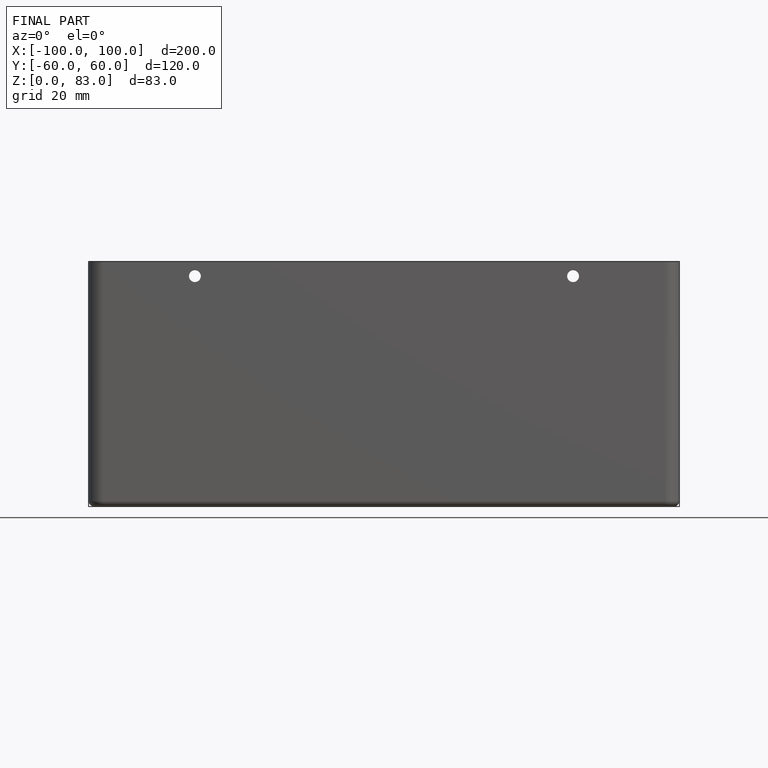
[diagram: finished part — front view with bounding-box wireframe]
